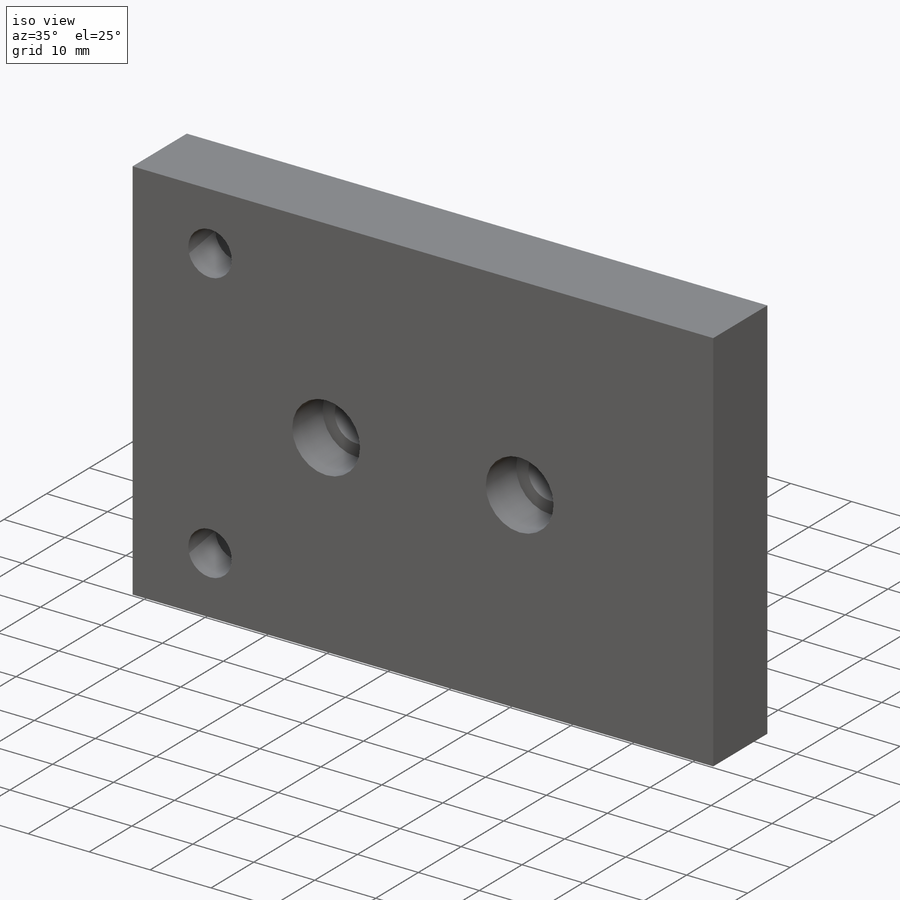
[diagram: iso view]
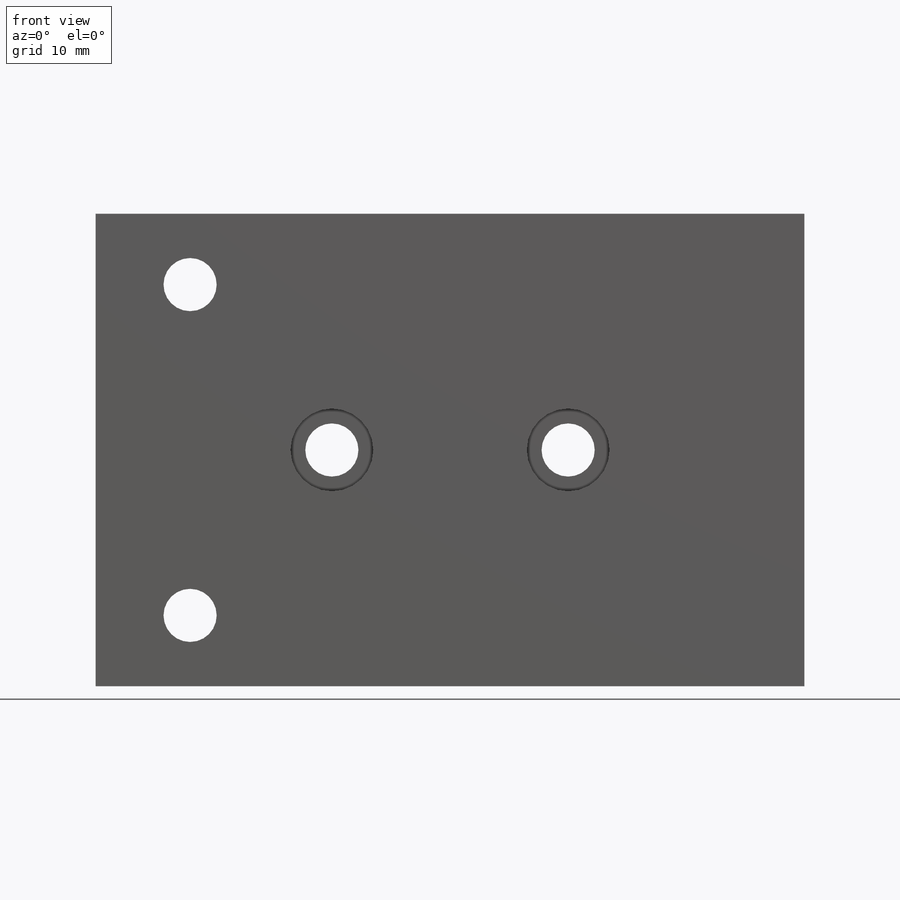
[diagram: front view]
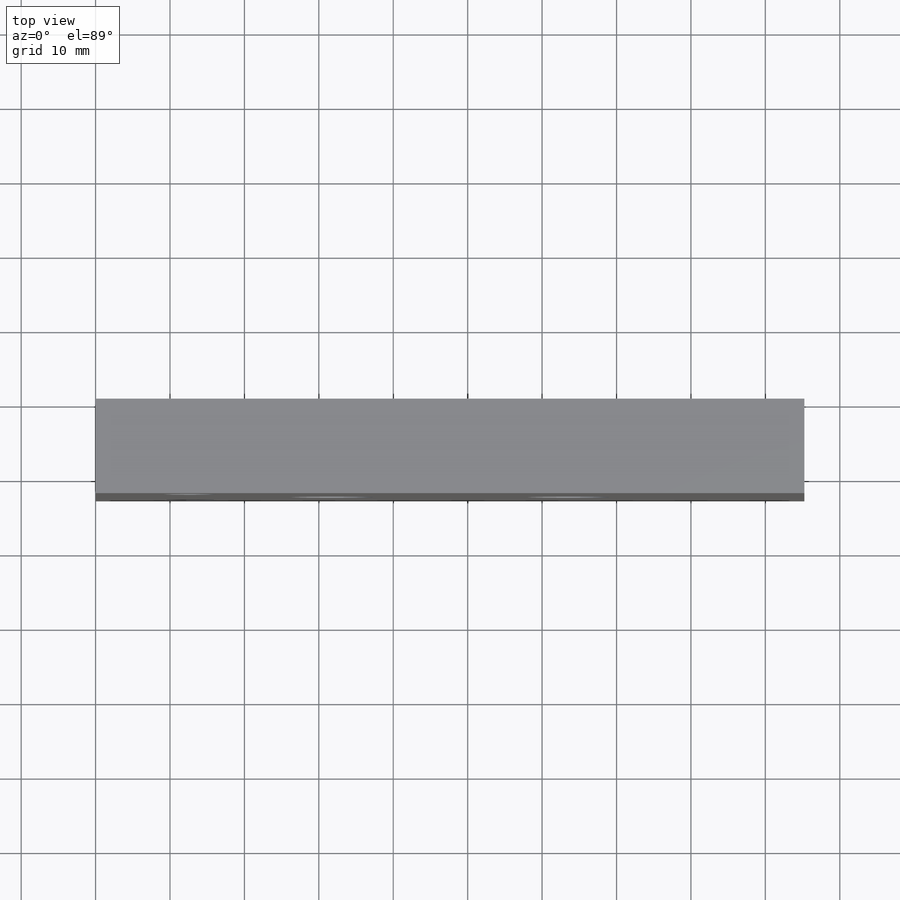
[diagram: top view]
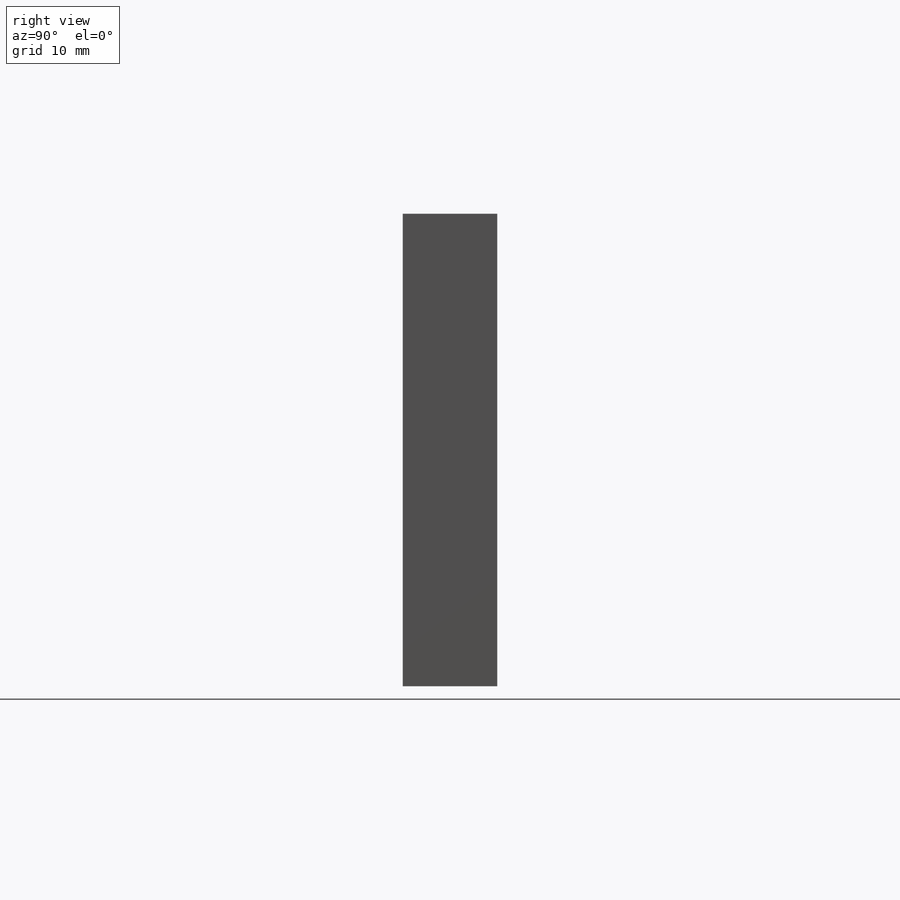
[diagram: right view]
SOLIDWORKS PART (.sldprt)
format: sldprt  version: not decoded by parser v0  size: 196,608 bytes
history: native  units: mm
features: sketch x5, hole x2, material x1, extrude x1 (+16 scaffold rows collapsed)
feature tree (25):
  scaffold x16  (default folders/planes/origin — collapsed)
  material  "6061-T6 Al"
  sketch  "Sketch1"  dims[c1.D5=12.7mm c1.D1=76.2mm c1.D2=95.25mm c2.D1=63.5mm c2.D3=25.4mm c2.D4=38.1mm]
  extrude  "Boss-Extrude1"  Depth=12.7mm
  hole  "CBORE for 1/4 Socket Head Cap Screw1"  Diameter=7.14248mm Depth=12.7mm
  sketch  "Sketch4"  dims[D1=12.7mm D2=44.45mm]
  sketch  "Sketch3"  dims[hole-wizard template sketch: 45 standard entries collapsed; hole parameters above]
  hole  "CBORE for 1/4 Socket Head Cap Screw2"  Diameter=7.14248mm Depth=12.7mm
  sketch  "Sketch8"  dims[D1=34.925mm D2=31.75mm]
  sketch  "Sketch7"  dims[hole-wizard template sketch: 44 standard entries collapsed; hole parameters kept: c12.C'Bore Depth=7.112mm]
decode coverage: 8 of 8 modeling features carry decoded parameters
note: ~ marks probable driven/reference dimensions
note: suppression state not decoded; provenance and decode notes live in map.json
